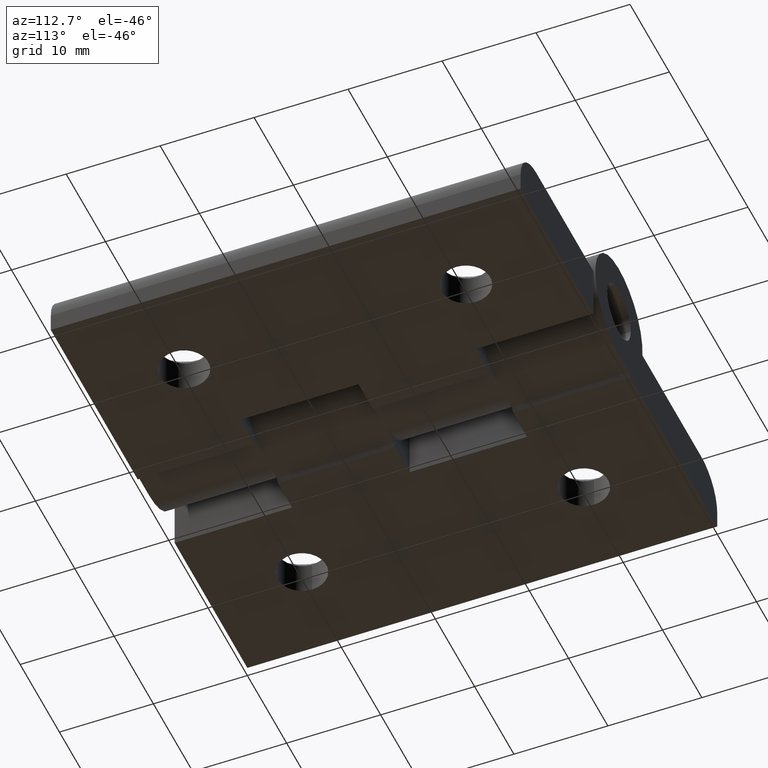
[diagram: clean part render]
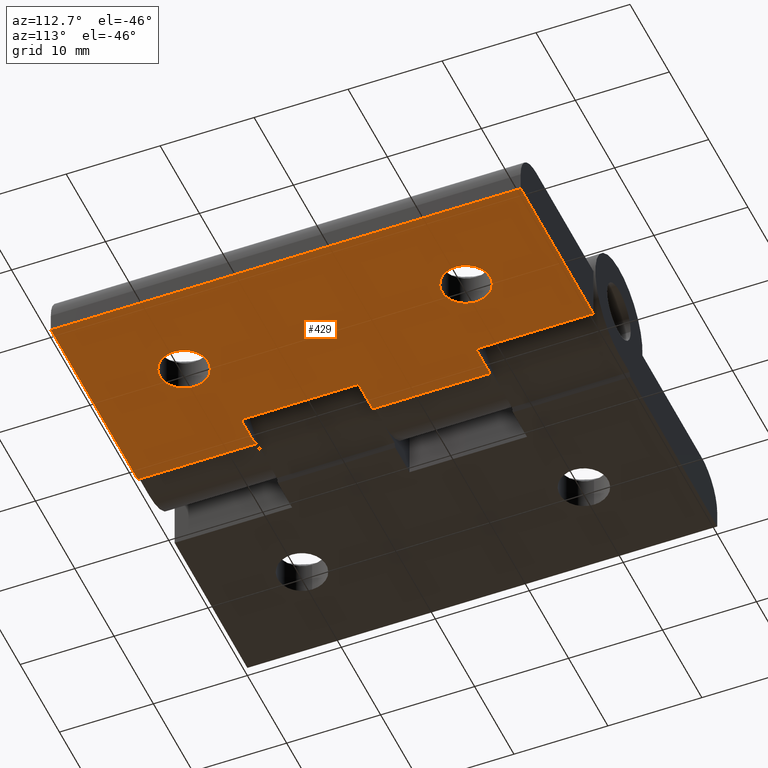
[diagram: same view with one face highlighted and labeled with its STEP entity id]
A machine part, auxiliary view. The second image highlights one B-rep face of the part: STEP entity #429.
In plain terms, the highlighted planar face has unit normal (0, 0, 1).
Its self-contained STEP definition (entity closure, byte-faithful):
#264=CARTESIAN_POINT('',(-12.115941246271177,2.499994999990122,-1.530805E-016));
#265=VERTEX_POINT('',#264);
#272=CARTESIAN_POINT('',(-12.115941246271177,-9.999979999960942,6.123222E-016));
#273=VERTEX_POINT('',#272);
#274=CARTESIAN_POINT('',(-12.115941246271177,-9.999979999960942,6.123222E-016));
#275=DIRECTION('',(0.0,1.0,0.0));
#276=VECTOR('',#275,12.499974999951064);
#277=LINE('',#274,#276);
#278=EDGE_CURVE('',#273,#265,#277,.T.);
#295=CARTESIAN_POINT('',(-12.115941246271177,27.499944999889060,-1.683886E-015));
#296=VERTEX_POINT('',#295);
#303=CARTESIAN_POINT('',(-12.115941246271177,14.999969999938902,-9.184833E-016));
#304=VERTEX_POINT('',#303);
#305=CARTESIAN_POINT('',(-12.115941246271177,14.999969999938902,-9.184833E-016));
#306=DIRECTION('',(0.0,1.0,0.0));
#307=VECTOR('',#306,12.499974999950158);
#308=LINE('',#305,#307);
#309=EDGE_CURVE('',#304,#296,#308,.T.);
#320=CARTESIAN_POINT('',(-12.115941246271177,-9.999979999960942,6.123222E-016));
#321=DIRECTION('',(0.0,0.0,1.0));
#322=DIRECTION('',(1.0,0.0,0.0));
#323=AXIS2_PLACEMENT_3D('',#320,#321,#322);
#324=PLANE('',#323);
#325=ORIENTED_EDGE('',*,*,#278,.T.);
#326=CARTESIAN_POINT('',(-8.499982999966505,2.499994999990122,-1.530805E-016));
#327=VERTEX_POINT('',#326);
#328=CARTESIAN_POINT('',(-12.115941246271177,2.499994999990122,-1.530805E-016));
#329=DIRECTION('',(1.0,0.0,0.0));
#330=VECTOR('',#329,3.615958246304672);
#331=LINE('',#328,#330);
#332=EDGE_CURVE('',#265,#327,#331,.T.);
#333=ORIENTED_EDGE('',*,*,#332,.T.);
#334=CARTESIAN_POINT('',(-8.499982999966505,14.999969999938902,-9.184833E-016));
#335=VERTEX_POINT('',#334);
#336=CARTESIAN_POINT('',(-8.499982999966505,14.999969999938902,-9.184833E-016));
#337=DIRECTION('',(0.0,-1.0,0.0));
#338=VECTOR('',#337,12.499974999948780);
#339=LINE('',#336,#338);
#340=EDGE_CURVE('',#335,#327,#339,.T.);
#341=ORIENTED_EDGE('',*,*,#340,.F.);
#342=CARTESIAN_POINT('',(-12.115941246271177,14.999969999938902,-9.184833E-016));
#343=DIRECTION('',(1.0,0.0,0.0));
#344=VECTOR('',#343,3.615958246304672);
#345=LINE('',#342,#344);
#346=EDGE_CURVE('',#304,#335,#345,.T.);
#347=ORIENTED_EDGE('',*,*,#346,.F.);
#348=ORIENTED_EDGE('',*,*,#309,.T.);
#349=CARTESIAN_POINT('',(-8.499982999967415,27.499944999889060,-1.683886E-015));
#350=VERTEX_POINT('',#349);
#351=CARTESIAN_POINT('',(-12.115941246271177,27.499944999889060,-1.683886E-015));
#352=DIRECTION('',(1.0,0.0,0.0));
#353=VECTOR('',#352,3.615958246303762);
#354=LINE('',#351,#353);
#355=EDGE_CURVE('',#296,#350,#354,.T.);
#356=ORIENTED_EDGE('',*,*,#355,.T.);
#357=CARTESIAN_POINT('',(-8.499982999967415,40.000020000039058,-2.449295E-015));
#358=VERTEX_POINT('',#357);
#359=CARTESIAN_POINT('',(-8.499982999967415,40.000020000039058,-2.449295E-015));
#360=DIRECTION('',(0.0,-1.0,0.0));
#361=VECTOR('',#360,12.500075000149998);
#362=LINE('',#359,#361);
#363=EDGE_CURVE('',#358,#350,#362,.T.);
#364=ORIENTED_EDGE('',*,*,#363,.F.);
#365=CARTESIAN_POINT('',(9.999979999960033,40.000020000039058,-2.449295E-015));
#366=VERTEX_POINT('',#365);
#367=CARTESIAN_POINT('',(-8.499982999967415,40.000020000039058,-2.449295E-015));
#368=DIRECTION('',(1.0,0.0,0.0));
#369=VECTOR('',#368,18.499962999927448);
#370=LINE('',#367,#369);
#371=EDGE_CURVE('',#358,#366,#370,.T.);
#372=ORIENTED_EDGE('',*,*,#371,.T.);
#373=CARTESIAN_POINT('',(9.999979999960033,-9.999979999960942,6.123222E-016));
#374=VERTEX_POINT('',#373);
#375=CARTESIAN_POINT('',(9.999979999960033,-9.999979999960942,6.123222E-016));
#376=DIRECTION('',(0.0,1.0,0.0));
#377=VECTOR('',#376,50.0);
#378=LINE('',#375,#377);
#379=EDGE_CURVE('',#374,#366,#378,.T.);
#380=ORIENTED_EDGE('',*,*,#379,.F.);
#381=CARTESIAN_POINT('',(-12.115941246271177,-9.999979999960942,6.123222E-016));
#382=DIRECTION('',(1.0,0.0,0.0));
#383=VECTOR('',#382,22.115921246231210);
#384=LINE('',#381,#383);
#385=EDGE_CURVE('',#273,#374,#384,.T.);
#386=ORIENTED_EDGE('',*,*,#385,.F.);
#387=EDGE_LOOP('',(#325,#333,#341,#347,#348,#356,#364,#372,#380,#386));
#388=FACE_OUTER_BOUND('',#387,.T.);
#389=CARTESIAN_POINT('',(2.578782843270346,0.0,0.0));
#390=VERTEX_POINT('',#389);
#391=CARTESIAN_POINT('',(-2.578782843270346,0.0,0.0));
#392=VERTEX_POINT('',#391);
#393=CARTESIAN_POINT('',(0.0,0.0,0.0));
#394=DIRECTION('',(0.0,6.123234E-017,1.0));
#395=DIRECTION('',(1.0,0.0,0.0));
#396=AXIS2_PLACEMENT_3D('',#393,#394,#395);
#397=CIRCLE('',#396,2.578782843270346);
#398=EDGE_CURVE('',#390,#392,#397,.T.);
#399=ORIENTED_EDGE('',*,*,#398,.T.);
#400=CARTESIAN_POINT('',(0.0,0.0,0.0));
#401=DIRECTION('',(0.0,6.123234E-017,1.0));
#402=DIRECTION('',(1.0,0.0,0.0));
#403=AXIS2_PLACEMENT_3D('',#400,#401,#402);
#404=CIRCLE('',#403,2.578782843270346);
#405=EDGE_CURVE('',#392,#390,#404,.T.);
#406=ORIENTED_EDGE('',*,*,#405,.T.);
#407=EDGE_LOOP('',(#399,#406));
#408=FACE_BOUND('',#407,.T.);
#409=CARTESIAN_POINT('',(2.578782843270346,30.0,-1.836970E-015));
#410=VERTEX_POINT('',#409);
#411=CARTESIAN_POINT('',(-2.578782843270346,30.0,-1.836970E-015));
#412=VERTEX_POINT('',#411);
#413=CARTESIAN_POINT('',(0.0,30.0,-1.836970E-015));
#414=DIRECTION('',(0.0,6.123234E-017,1.0));
#415=DIRECTION('',(1.0,0.0,0.0));
#416=AXIS2_PLACEMENT_3D('',#413,#414,#415);
#417=CIRCLE('',#416,2.578782843270346);
#418=EDGE_CURVE('',#410,#412,#417,.T.);
#419=ORIENTED_EDGE('',*,*,#418,.T.);
#420=CARTESIAN_POINT('',(0.0,30.0,-1.836970E-015));
#421=DIRECTION('',(0.0,6.123234E-017,1.0));
#422=DIRECTION('',(1.0,0.0,0.0));
#423=AXIS2_PLACEMENT_3D('',#420,#421,#422);
#424=CIRCLE('',#423,2.578782843270346);
#425=EDGE_CURVE('',#412,#410,#424,.T.);
#426=ORIENTED_EDGE('',*,*,#425,.T.);
#427=EDGE_LOOP('',(#419,#426));
#428=FACE_BOUND('',#427,.T.);
#429=ADVANCED_FACE('',(#388,#408,#428),#324,.F.);